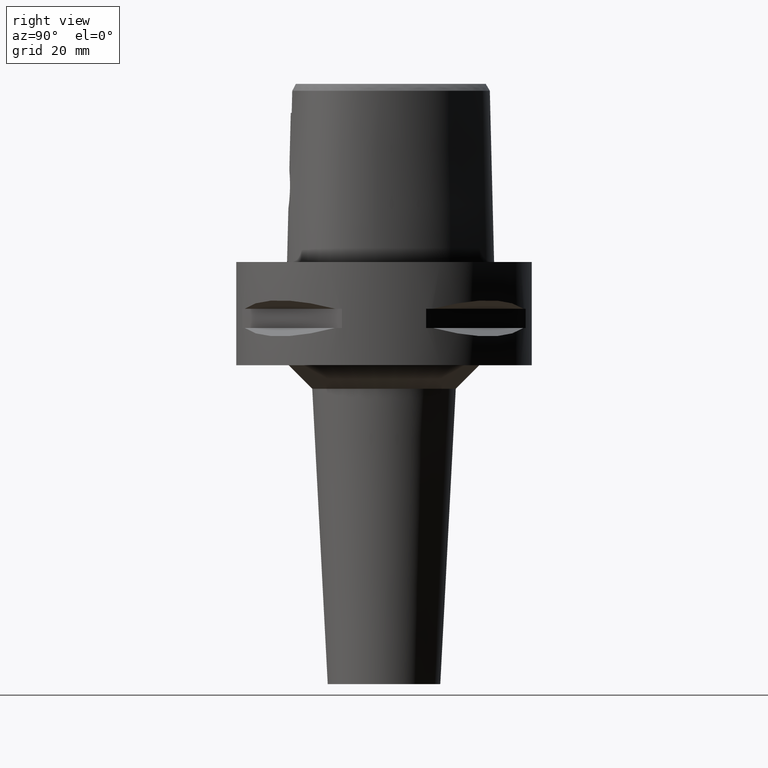
[diagram: clean part render]
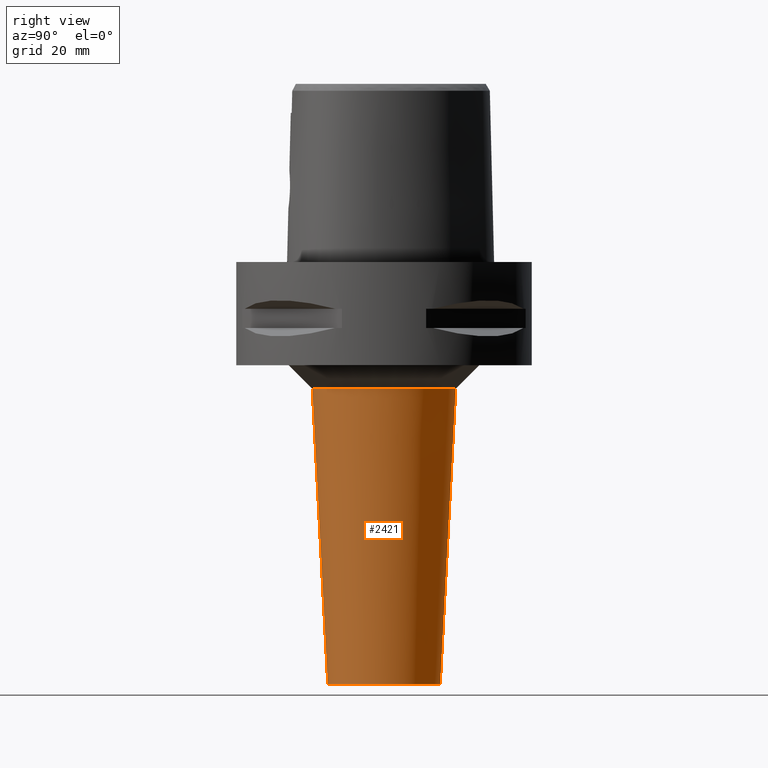
[diagram: same view with one face highlighted and labeled with its STEP entity id]
A machine part, right view. The second image highlights one B-rep face of the part: STEP entity #2421.
In plain terms, the highlighted conical surface has half-angle 3 deg.
Its self-contained STEP definition (entity closure, byte-faithful):
#562=DIRECTION('',(0.E0,-5.233595624292E-2,-9.986295347546E-1));
#563=VECTOR('',#562,6.308645779787E1);
#564=CARTESIAN_POINT('',(0.E0,1.530169009483E1,-2.7E1));
#565=LINE('',#564,#563);
#569=CARTESIAN_POINT('',(0.E0,0.E0,-2.7E1));
#570=DIRECTION('',(0.E0,0.E0,1.E0));
#571=DIRECTION('',(0.E0,-1.E0,0.E0));
#572=AXIS2_PLACEMENT_3D('',#569,#570,#571);
#577=DIRECTION('',(0.E0,5.233595624292E-2,-9.986295347546E-1));
#578=VECTOR('',#577,6.308645779787E1);
#579=CARTESIAN_POINT('',(0.E0,-1.530169009483E1,-2.7E1));
#580=LINE('',#579,#578);
#584=CARTESIAN_POINT('',(0.E0,0.E0,-9.E1));
#585=DIRECTION('',(0.E0,0.E0,1.E0));
#586=DIRECTION('',(0.E0,-1.E0,0.E0));
#587=AXIS2_PLACEMENT_3D('',#584,#585,#586);
#1504=CARTESIAN_POINT('',(0.E0,1.530169009483E1,-2.7E1));
#1505=VERTEX_POINT('',#1504);
#1506=CARTESIAN_POINT('',(0.E0,-1.530169009483E1,-2.7E1));
#1507=VERTEX_POINT('',#1506);
#1508=CARTESIAN_POINT('',(0.E0,1.2E1,-9.E1));
#1509=VERTEX_POINT('',#1508);
#1510=CARTESIAN_POINT('',(0.E0,-1.2E1,-9.E1));
#1511=VERTEX_POINT('',#1510);
#2407=CARTESIAN_POINT('',(0.E0,0.E0,-5.85E1));
#2408=DIRECTION('',(0.E0,0.E0,1.E0));
#2409=DIRECTION('',(0.E0,1.E0,0.E0));
#2410=AXIS2_PLACEMENT_3D('',#2407,#2408,#2409);
#2411=CONICAL_SURFACE('',#2410,1.365084504742E1,3.E0);
#2413=ORIENTED_EDGE('',*,*,#2412,.T.);
#2415=ORIENTED_EDGE('',*,*,#2414,.F.);
#2417=ORIENTED_EDGE('',*,*,#2416,.F.);
#2418=ORIENTED_EDGE('',*,*,#2400,.T.);
#2419=EDGE_LOOP('',(#2413,#2415,#2417,#2418));
#2420=FACE_OUTER_BOUND('',#2419,.F.);
#573=CIRCLE('',#572,1.530169009484E1);
#588=CIRCLE('',#587,1.2E1);
#2400=EDGE_CURVE('',#1507,#1505,#573,.T.);
#2412=EDGE_CURVE('',#1505,#1509,#565,.T.);
#2414=EDGE_CURVE('',#1511,#1509,#588,.T.);
#2416=EDGE_CURVE('',#1507,#1511,#580,.T.);
#2421=ADVANCED_FACE('',(#2420),#2411,.T.);